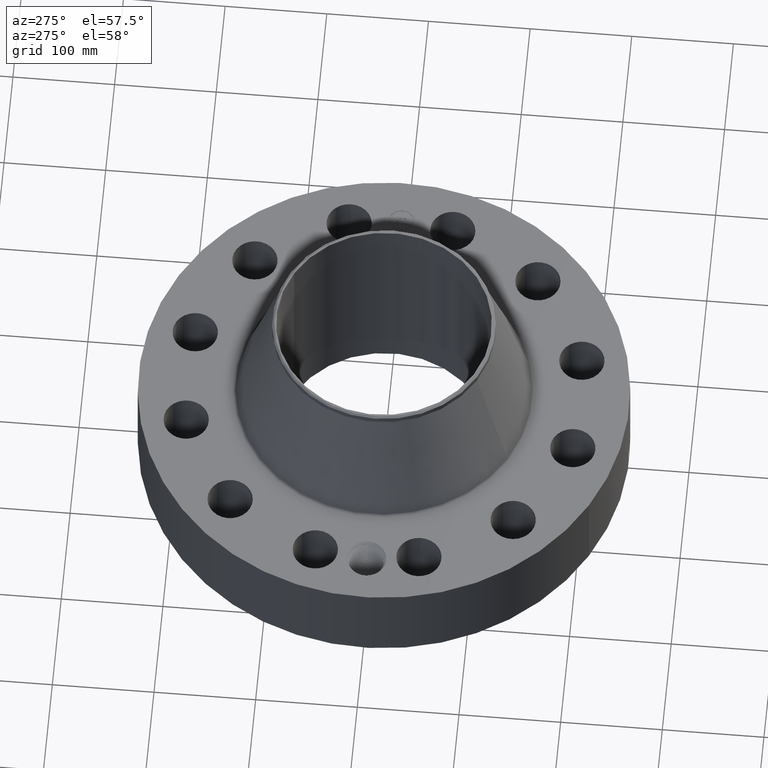
[diagram: clean part render]
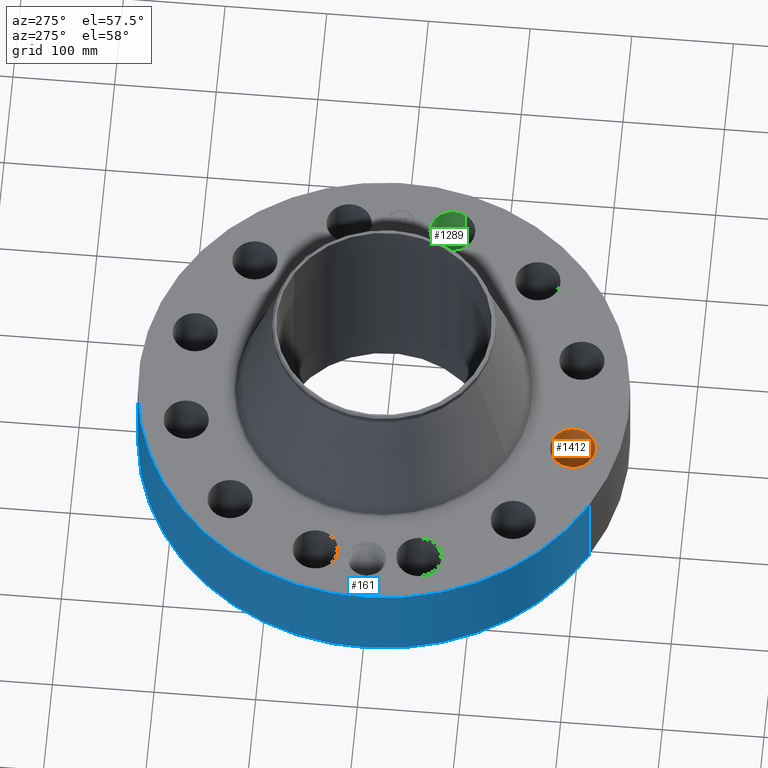
[diagram: same view with three faces highlighted in distinct colors, each labeled with its STEP entity id]
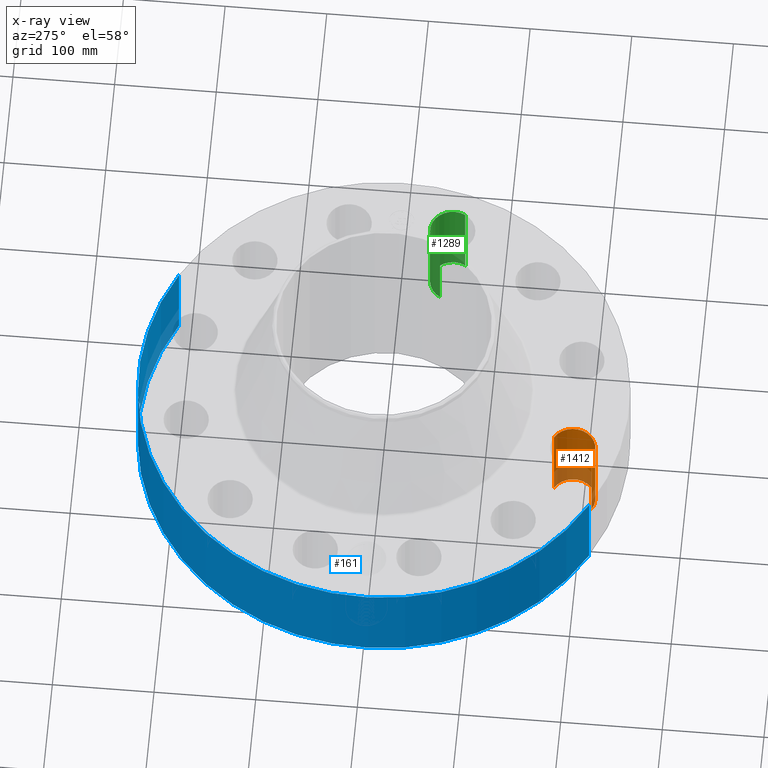
[diagram: x-ray of the same camera — body ghosted, the three highlighted faces saturated]
A machine part, auxiliary view with three faces highlighted in distinct colors.
The next image is the same camera in x-ray (body ghosted, the three faces saturated) — at least one of them is partly hidden behind the body in this view.
Their STEP definitions:

[orange] entity #1412 — the highlighted cylindrical surface (edge-blend (fillet) strip) has radius 22.225 mm, axis along (0, -0, -1).
#316=AXIS2_PLACEMENT_3D('Circle Axis2P3D',#314,#315,$) ;
#726=AXIS2_PLACEMENT_3D('Circle Axis2P3D',#724,#725,$) ;
#1394=AXIS2_PLACEMENT_3D('Cylinder Axis2P3D',#1391,#1392,#1393) ;
#314=CARTESIAN_POINT('Axis2P3D Location',(-2.00584759955,-7.48592515377,0.250000000001)) ;
#318=CARTESIAN_POINT('Vertex',(-1.58635025327,-6.71804041211,0.250000000001)) ;
#320=CARTESIAN_POINT('Vertex',(-2.42534494583,-8.25380989543,0.250000000001)) ;
#719=CARTESIAN_POINT('Vertex',(-2.42534494583,-8.25380989543,3.87000000002)) ;
#721=CARTESIAN_POINT('Vertex',(-1.58635025327,-6.71804041211,3.87000000002)) ;
#724=CARTESIAN_POINT('Axis2P3D Location',(-2.00584759955,-7.48592515377,3.87000000002)) ;
#1391=CARTESIAN_POINT('Axis2P3D Location',(-2.00584759955,-7.48592515377,3.86606299214)) ;
#1396=CARTESIAN_POINT('Line Origine',(-1.58635025327,-6.71804041211,2.06000000001)) ;
#1401=CARTESIAN_POINT('Line Origine',(-2.42534494583,-8.25380989543,2.06000000001)) ;
#315=DIRECTION('Axis2P3D Direction',(0.,0.,-0.0393700787402)) ;
#725=DIRECTION('Axis2P3D Direction',(0.,0.,-0.0393700787402)) ;
#1392=DIRECTION('Axis2P3D Direction',(0.,-0.,-0.0393700787402)) ;
#1393=DIRECTION('Axis2P3D XDirection',(-0.0188750212049,-0.0345504945626,0.)) ;
#1397=DIRECTION('Vector Direction',(0.,0.,-0.0393700787402)) ;
#1402=DIRECTION('Vector Direction',(0.,0.,-0.0393700787402)) ;
#1398=VECTOR('Line Direction',#1397,0.0393700787402) ;
#1403=VECTOR('Line Direction',#1402,0.0393700787402) ;
#1407=ORIENTED_EDGE('',*,*,#1400,.F.) ;
#1408=ORIENTED_EDGE('',*,*,#322,.T.) ;
#1409=ORIENTED_EDGE('',*,*,#1405,.T.) ;
#1410=ORIENTED_EDGE('',*,*,#728,.F.) ;
#1412=ADVANCED_FACE('PartBody',(#1411),#1395,.F.) ;
#317=CIRCLE('generated circle',#316,0.875000000003) ;
#727=CIRCLE('generated circle',#726,0.875000000003) ;
#1395=CYLINDRICAL_SURFACE('generated cylinder',#1394,0.875000000003) ;
#322=EDGE_CURVE('',#319,#321,#317,.T.) ;
#728=EDGE_CURVE('',#722,#720,#727,.T.) ;
#1400=EDGE_CURVE('',#319,#722,#1399,.F.) ;
#1405=EDGE_CURVE('',#321,#720,#1404,.F.) ;
#1406=EDGE_LOOP('',(#1407,#1408,#1409,#1410)) ;
#1411=FACE_OUTER_BOUND('',#1406,.T.) ;
#1399=LINE('Line',#1396,#1398) ;
#1404=LINE('Line',#1401,#1403) ;
#319=VERTEX_POINT('',#318) ;
#321=VERTEX_POINT('',#320) ;
#720=VERTEX_POINT('',#719) ;
#722=VERTEX_POINT('',#721) ;

[blue] entity #161 — the highlighted cylindrical surface (partial cylindrical patch) has radius 241.3 mm, axis along (0, 0, -1).
#38=AXIS2_PLACEMENT_3D('Cylinder Axis2P3D',#35,#36,#37) ;
#42=AXIS2_PLACEMENT_3D('Circle Axis2P3D',#40,#41,$) ;
#58=AXIS2_PLACEMENT_3D('Circle Axis2P3D',#56,#57,$) ;
#35=CARTESIAN_POINT('Axis2P3D Location',(0.,0.,4.31500000002)) ;
#40=CARTESIAN_POINT('Axis2P3D Location',(0.,0.,0.250000000001)) ;
#44=CARTESIAN_POINT('Vertex',(-4.55454261676,-8.33703433799,0.250000000001)) ;
#46=CARTESIAN_POINT('Vertex',(4.55454261676,8.33703433799,0.250000000001)) ;
#49=CARTESIAN_POINT('Line Origine',(-4.55454261676,-8.33703433799,2.06000000001)) ;
#53=CARTESIAN_POINT('Vertex',(-4.55454261676,-8.33703433799,3.87000000002)) ;
#56=CARTESIAN_POINT('Axis2P3D Location',(0.,0.,3.87000000002)) ;
#60=CARTESIAN_POINT('Vertex',(4.55454261676,8.33703433799,3.87000000002)) ;
#63=CARTESIAN_POINT('Line Origine',(4.55454261676,8.33703433799,2.06000000001)) ;
#75=CARTESIAN_POINT('Control Point',(-0.057532567552,9.49982578811,1.28940862591)) ;
#76=CARTESIAN_POINT('Control Point',(-0.0387617029262,9.49993946767,1.2925030616)) ;
#77=CARTESIAN_POINT('Control Point',(-0.0197405343422,9.49999853895,1.2940799501)) ;
#78=CARTESIAN_POINT('Control Point',(-0.000716129652359,9.49999997305,1.29411849914)) ;
#79=CARTESIAN_POINT('Vertex',(-0.0575195611824,9.49982611812,1.28941105279)) ;
#81=CARTESIAN_POINT('Vertex',(-0.000716015010135,9.49999997305,1.29411850959)) ;
#85=CARTESIAN_POINT('Control Point',(-0.0575194650207,9.49982586745,1.28941049641)) ;
#86=CARTESIAN_POINT('Control Point',(-0.0971263632622,9.49958605594,1.28465850568)) ;
#87=CARTESIAN_POINT('Control Point',(-0.13600264662,9.49909360353,1.27268550158)) ;
#88=CARTESIAN_POINT('Control Point',(-0.171718061243,9.49844792101,1.25435913128)) ;
#89=CARTESIAN_POINT('Vertex',(-0.171718061243,9.49844792101,1.25435913128)) ;
#93=CARTESIAN_POINT('Control Point',(-0.0304002735868,9.49995135904,0.531143633136)) ;
#94=CARTESIAN_POINT('Control Point',(-0.0867716236342,9.49977096817,0.538305394623)) ;
#95=CARTESIAN_POINT('Control Point',(-0.141553163635,9.49917753609,0.555914995245)) ;
#96=CARTESIAN_POINT('Control Point',(-0.192025537029,9.49822518869,0.58347830242)) ;
#97=CARTESIAN_POINT('Control Point',(-0.26532511444,9.49641279305,0.642895462497)) ;
#98=CARTESIAN_POINT('Control Point',(-0.317440528967,9.49472459473,0.7193161632)) ;
#99=CARTESIAN_POINT('Control Point',(-0.334530416822,9.49412332696,0.751986425908)) ;
#100=CARTESIAN_POINT('Control Point',(-0.368476749396,9.4928757749,0.840222821028)) ;
#101=CARTESIAN_POINT('Control Point',(-0.37552640359,9.49256610225,0.934455389686)) ;
#102=CARTESIAN_POINT('Control Point',(-0.369385992424,9.49282227648,0.991999991286)) ;
#103=CARTESIAN_POINT('Control Point',(-0.339906533103,9.49399493766,1.09112721548)) ;
#104=CARTESIAN_POINT('Control Point',(-0.28028530537,9.49592560804,1.17427142735)) ;
#105=CARTESIAN_POINT('Control Point',(-0.248256654014,9.496854785,1.20690643491)) ;
#106=CARTESIAN_POINT('Control Point',(-0.211604005781,9.49772684141,1.23389277066)) ;
#107=CARTESIAN_POINT('Control Point',(-0.171718061243,9.49844792101,1.25435913128)) ;
#108=CARTESIAN_POINT('Vertex',(-0.0304002735868,9.49995135904,0.531143633136)) ;
#112=CARTESIAN_POINT('Control Point',(-0.0304002735868,9.49995135904,0.531143633136)) ;
#113=CARTESIAN_POINT('Control Point',(-0.0202611729211,9.49998380462,0.53086805011)) ;
#114=CARTESIAN_POINT('Control Point',(-0.0101166074945,9.50000000294,0.530945220321)) ;
#115=CARTESIAN_POINT('Control Point',(2.72878354617E-006,9.50000000004,0.531374667805)) ;
#116=CARTESIAN_POINT('Vertex',(2.72878353848E-006,9.50000000004,0.531374667805)) ;
#120=CARTESIAN_POINT('Control Point',(0.193159967405,9.49803607214,0.586433233683)) ;
#121=CARTESIAN_POINT('Control Point',(0.149212423448,9.49892982598,0.561467059971)) ;
#122=CARTESIAN_POINT('Control Point',(0.101158452121,9.49963677984,0.543581165943)) ;
#123=CARTESIAN_POINT('Control Point',(0.0508206520105,9.49999998544,0.53353129569)) ;
#124=CARTESIAN_POINT('Control Point',(2.7287835293E-006,9.50000000004,0.531374667805)) ;
#125=CARTESIAN_POINT('Vertex',(0.193159967405,9.49803607214,0.586433233683)) ;
#129=CARTESIAN_POINT('Control Point',(0.193159967405,9.49803607214,0.586433233683)) ;
#130=CARTESIAN_POINT('Control Point',(0.222119006547,9.49744713702,0.602884582388)) ;
#131=CARTESIAN_POINT('Control Point',(0.249411383299,9.49678168254,0.622217405788)) ;
#132=CARTESIAN_POINT('Control Point',(0.27463229271,9.49607319595,0.644255702062)) ;
#133=CARTESIAN_POINT('Control Point',(0.34138587325,9.49399594884,0.716105581279)) ;
#134=CARTESIAN_POINT('Control Point',(0.383874883533,9.49227878282,0.805901942578)) ;
#135=CARTESIAN_POINT('Control Point',(0.398800769093,9.49161188678,0.870351359498)) ;
#136=CARTESIAN_POINT('Control Point',(0.399486240285,9.49162271031,0.984725351304)) ;
#137=CARTESIAN_POINT('Control Point',(0.359254072448,9.49323070792,1.0894776776)) ;
#138=CARTESIAN_POINT('Control Point',(0.334931992888,9.49415713767,1.1309598302)) ;
#139=CARTESIAN_POINT('Control Point',(0.26615983653,9.49647544685,1.21445681121)) ;
#140=CARTESIAN_POINT('Control Point',(0.173480293445,9.49864536547,1.26890997348)) ;
#141=CARTESIAN_POINT('Control Point',(0.116677432548,9.49955881178,1.28863410109)) ;
#142=CARTESIAN_POINT('Control Point',(0.0579003419899,9.50000015767,1.29699293844)) ;
#143=CARTESIAN_POINT('Control Point',(-2.58579355347E-005,9.5,1.29415298432)) ;
#144=CARTESIAN_POINT('Vertex',(-2.58579355373E-005,9.5,1.29415298432)) ;
#148=CARTESIAN_POINT('Control Point',(-0.000716015000086,9.49999997305,1.29411850958)) ;
#149=CARTESIAN_POINT('Control Point',(-0.000370960587745,9.49999999906,1.29413606495)) ;
#150=CARTESIAN_POINT('Control Point',(-2.58579411675E-005,9.5,1.29415298432)) ;
#36=DIRECTION('Axis2P3D Direction',(0.,0.,-0.0393700787402)) ;
#37=DIRECTION('Axis2P3D XDirection',(0.0188750212049,0.0345504945626,0.)) ;
#41=DIRECTION('Axis2P3D Direction',(0.,0.,-0.0393700787402)) ;
#50=DIRECTION('Vector Direction',(0.,0.,-0.0393700787402)) ;
#57=DIRECTION('Axis2P3D Direction',(0.,0.,-0.0393700787402)) ;
#64=DIRECTION('Vector Direction',(0.,0.,-0.0393700787402)) ;
#51=VECTOR('Line Direction',#50,0.0393700787402) ;
#65=VECTOR('Line Direction',#64,0.0393700787402) ;
#69=ORIENTED_EDGE('',*,*,#48,.F.) ;
#70=ORIENTED_EDGE('',*,*,#55,.T.) ;
#71=ORIENTED_EDGE('',*,*,#62,.T.) ;
#72=ORIENTED_EDGE('',*,*,#67,.F.) ;
#153=ORIENTED_EDGE('',*,*,#83,.F.) ;
#154=ORIENTED_EDGE('',*,*,#91,.T.) ;
#155=ORIENTED_EDGE('',*,*,#110,.F.) ;
#156=ORIENTED_EDGE('',*,*,#118,.T.) ;
#157=ORIENTED_EDGE('',*,*,#127,.F.) ;
#158=ORIENTED_EDGE('',*,*,#146,.T.) ;
#159=ORIENTED_EDGE('',*,*,#151,.F.) ;
#160=FACE_BOUND('',#152,.T.) ;
#161=ADVANCED_FACE('PartBody',(#73,#160),#39,.T.) ;
#74=B_SPLINE_CURVE_WITH_KNOTS('',3,(#75,#76,#77,#78),.UNSPECIFIED.,.F.,.U.,(4,4),(4.41073259555,6.52131742531),.UNSPECIFIED.) ;
#84=B_SPLINE_CURVE_WITH_KNOTS('',3,(#85,#86,#87,#88),.UNSPECIFIED.,.F.,.U.,(4,4),(0.,4.48220722241),.UNSPECIFIED.) ;
#92=B_SPLINE_CURVE_WITH_KNOTS('',5,(#93,#94,#95,#96,#97,#98,#99,#100,#101,#102,#103,#104,#105,#106,#107),.UNSPECIFIED.,.F.,.U.,(6,3,3,3,6),(0.,9.87570583419,16.4487421046,26.8457131522,35.1883792374),.UNSPECIFIED.) ;
#111=B_SPLINE_CURVE_WITH_KNOTS('',3,(#112,#113,#114,#115),.UNSPECIFIED.,.F.,.U.,(4,4),(0.,1.05758898706),.UNSPECIFIED.) ;
#119=B_SPLINE_CURVE_WITH_KNOTS('',4,(#120,#121,#122,#123,#124),.UNSPECIFIED.,.F.,.U.,(5,5),(0.,7.08142307158),.UNSPECIFIED.) ;
#128=B_SPLINE_CURVE_WITH_KNOTS('',5,(#129,#130,#131,#132,#133,#134,#135,#136,#137,#138,#139,#140,#141,#142,#143),.UNSPECIFIED.,.F.,.U.,(6,3,3,3,6),(0.,5.83284033749,17.117740629,25.5997495955,36.4273577551),.UNSPECIFIED.) ;
#147=B_SPLINE_CURVE_WITH_KNOTS('',2,(#148,#149,#150),.UNSPECIFIED.,.F.,.U.,(3,3),(1.04159308309,1.06739582116),.UNSPECIFIED.) ;
#43=CIRCLE('generated circle',#42,9.50000000004) ;
#59=CIRCLE('generated circle',#58,9.50000000004) ;
#39=CYLINDRICAL_SURFACE('generated cylinder',#38,9.50000000004) ;
#48=EDGE_CURVE('',#45,#47,#43,.T.) ;
#55=EDGE_CURVE('',#45,#54,#52,.F.) ;
#62=EDGE_CURVE('',#54,#61,#59,.T.) ;
#67=EDGE_CURVE('',#47,#61,#66,.F.) ;
#83=EDGE_CURVE('',#80,#82,#74,.T.) ;
#91=EDGE_CURVE('',#80,#90,#84,.T.) ;
#110=EDGE_CURVE('',#109,#90,#92,.T.) ;
#118=EDGE_CURVE('',#109,#117,#111,.T.) ;
#127=EDGE_CURVE('',#126,#117,#119,.T.) ;
#146=EDGE_CURVE('',#126,#145,#128,.T.) ;
#151=EDGE_CURVE('',#82,#145,#147,.T.) ;
#68=EDGE_LOOP('',(#69,#70,#71,#72)) ;
#152=EDGE_LOOP('',(#153,#154,#155,#156,#157,#158,#159)) ;
#73=FACE_OUTER_BOUND('',#68,.T.) ;
#52=LINE('Line',#49,#51) ;
#66=LINE('Line',#63,#65) ;
#45=VERTEX_POINT('',#44) ;
#47=VERTEX_POINT('',#46) ;
#54=VERTEX_POINT('',#53) ;
#61=VERTEX_POINT('',#60) ;
#80=VERTEX_POINT('',#79) ;
#82=VERTEX_POINT('',#81) ;
#90=VERTEX_POINT('',#89) ;
#109=VERTEX_POINT('',#108) ;
#117=VERTEX_POINT('',#116) ;
#126=VERTEX_POINT('',#125) ;
#145=VERTEX_POINT('',#144) ;

[green] entity #1289 — the highlighted cylindrical surface (edge-blend (fillet) strip) has radius 22.225 mm, axis along (0, -0, -1).
#253=AXIS2_PLACEMENT_3D('Circle Axis2P3D',#251,#252,$) ;
#645=AXIS2_PLACEMENT_3D('Circle Axis2P3D',#643,#644,$) ;
#1264=AXIS2_PLACEMENT_3D('Cylinder Axis2P3D',#1261,#1262,#1263) ;
#246=CARTESIAN_POINT('Vertex',(8.25380989543,-2.42534494583,0.250000000001)) ;
#248=CARTESIAN_POINT('Vertex',(6.71804041211,-1.58635025327,0.250000000001)) ;
#251=CARTESIAN_POINT('Axis2P3D Location',(7.48592515377,-2.00584759955,0.250000000001)) ;
#643=CARTESIAN_POINT('Axis2P3D Location',(7.48592515377,-2.00584759955,3.87000000002)) ;
#647=CARTESIAN_POINT('Vertex',(6.71804041211,-1.58635025327,3.87000000002)) ;
#649=CARTESIAN_POINT('Vertex',(8.25380989543,-2.42534494583,3.87000000002)) ;
#1261=CARTESIAN_POINT('Axis2P3D Location',(7.48592515377,-2.00584759955,3.86606299214)) ;
#1266=CARTESIAN_POINT('Line Origine',(8.25380989543,-2.42534494583,2.06000000001)) ;
#1271=CARTESIAN_POINT('Line Origine',(6.71804041211,-1.58635025327,2.06000000001)) ;
#252=DIRECTION('Axis2P3D Direction',(0.,0.,-0.0393700787402)) ;
#644=DIRECTION('Axis2P3D Direction',(0.,0.,-0.0393700787402)) ;
#1262=DIRECTION('Axis2P3D Direction',(0.,-0.,-0.0393700787402)) ;
#1263=DIRECTION('Axis2P3D XDirection',(-0.0345504945626,0.0188750212049,0.)) ;
#1267=DIRECTION('Vector Direction',(0.,0.,-0.0393700787402)) ;
#1272=DIRECTION('Vector Direction',(0.,0.,-0.0393700787402)) ;
#1268=VECTOR('Line Direction',#1267,0.0393700787402) ;
#1273=VECTOR('Line Direction',#1272,0.0393700787402) ;
#1284=ORIENTED_EDGE('',*,*,#1275,.F.) ;
#1285=ORIENTED_EDGE('',*,*,#255,.T.) ;
#1286=ORIENTED_EDGE('',*,*,#1270,.T.) ;
#1287=ORIENTED_EDGE('',*,*,#651,.F.) ;
#1289=ADVANCED_FACE('PartBody',(#1288),#1265,.F.) ;
#254=CIRCLE('generated circle',#253,0.875000000003) ;
#646=CIRCLE('generated circle',#645,0.875000000003) ;
#1265=CYLINDRICAL_SURFACE('generated cylinder',#1264,0.875000000003) ;
#255=EDGE_CURVE('',#249,#247,#254,.T.) ;
#651=EDGE_CURVE('',#648,#650,#646,.T.) ;
#1270=EDGE_CURVE('',#247,#650,#1269,.F.) ;
#1275=EDGE_CURVE('',#249,#648,#1274,.F.) ;
#1283=EDGE_LOOP('',(#1284,#1285,#1286,#1287)) ;
#1288=FACE_OUTER_BOUND('',#1283,.T.) ;
#1269=LINE('Line',#1266,#1268) ;
#1274=LINE('Line',#1271,#1273) ;
#247=VERTEX_POINT('',#246) ;
#249=VERTEX_POINT('',#248) ;
#648=VERTEX_POINT('',#647) ;
#650=VERTEX_POINT('',#649) ;